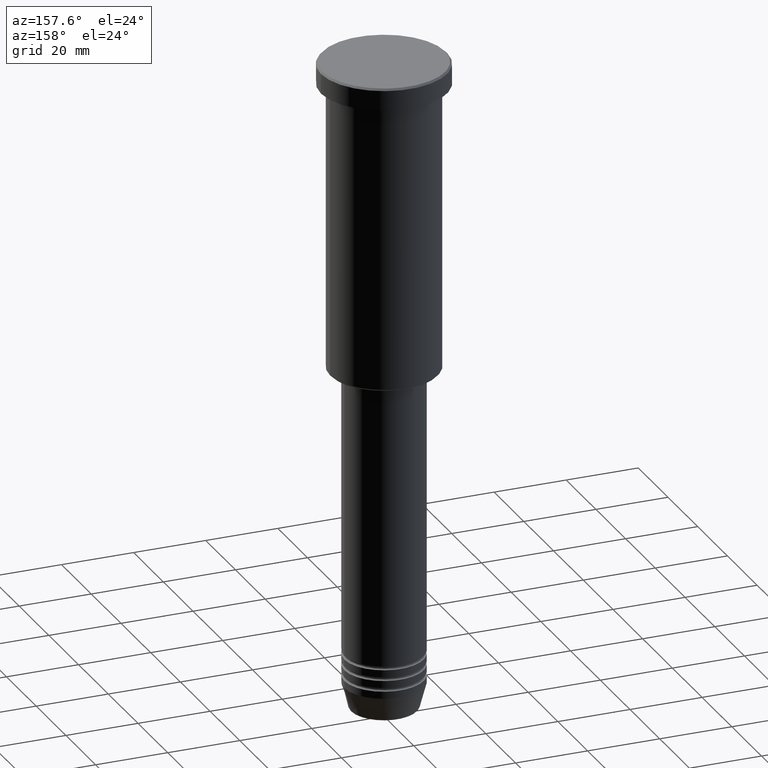
[diagram: clean part render]
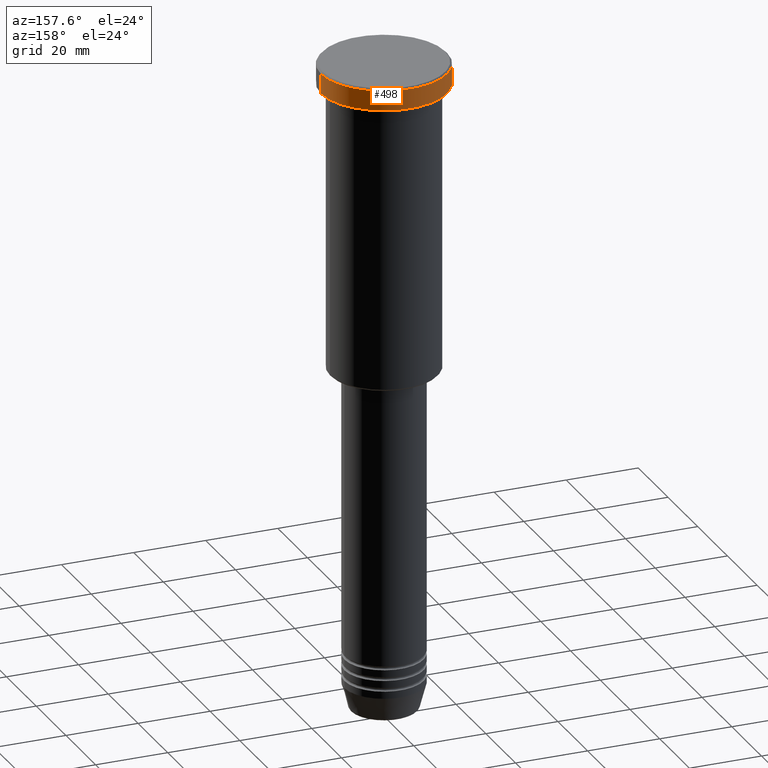
[diagram: same view with one face highlighted and labeled with its STEP entity id]
A machine part, auxiliary view. The second image highlights one B-rep face of the part: STEP entity #498.
In plain terms, the highlighted cylindrical surface (partial cylindrical patch) has radius 17.5 mm, axis along (-0, -0, 1).
Its self-contained STEP definition (entity closure, byte-faithful):
#21 = CARTESIAN_POINT ( 'NONE',  ( 17.50000000000000000, 0.000000000000000000, 0.000000000000000000 ) ) ;
#33 = LINE ( 'NONE', #294, #351 ) ;
#60 = ORIENTED_EDGE ( 'NONE', *, *, #662, .F. ) ;
#77 = CARTESIAN_POINT ( 'NONE',  ( -17.50000000000000000, 2.143131898507868248E-15, -5.999999999999995559 ) ) ;
#117 = ORIENTED_EDGE ( 'NONE', *, *, #884, .T. ) ;
#201 = ORIENTED_EDGE ( 'NONE', *, *, #1064, .T. ) ;
#218 = CIRCLE ( 'NONE', #738, 17.50000000000000000 ) ;
#250 = CARTESIAN_POINT ( 'NONE',  ( 17.50000000000000000, 0.000000000000000000, -0.5000000000000003331 ) ) ;
#255 = VECTOR ( 'NONE', #288, 1000.000000000000000 ) ;
#256 = DIRECTION ( 'NONE',  ( 1.000000000000000000, 0.000000000000000000, 0.000000000000000000 ) ) ;
#282 = EDGE_CURVE ( 'NONE', #1085, #1180, #1038, .T. ) ;
#288 = DIRECTION ( 'NONE',  ( -0.000000000000000000, -0.000000000000000000, 1.000000000000000000 ) ) ;
#294 = CARTESIAN_POINT ( 'NONE',  ( -17.50000000000000000, 2.143131898507868248E-15, 0.000000000000000000 ) ) ;
#336 = DIRECTION ( 'NONE',  ( -0.000000000000000000, -0.000000000000000000, 1.000000000000000000 ) ) ;
#351 = VECTOR ( 'NONE', #674, 1000.000000000000000 ) ;
#489 = CARTESIAN_POINT ( 'NONE',  ( 17.50000000000000000, 0.000000000000000000, -5.999999999999995559 ) ) ;
#496 = DIRECTION ( 'NONE',  ( 0.000000000000000000, 0.000000000000000000, -1.000000000000000000 ) ) ;
#498 = ADVANCED_FACE ( 'NONE', ( #821 ), #810, .T. ) ;
#509 = VERTEX_POINT ( 'NONE', #77 ) ;
#524 = DIRECTION ( 'NONE',  ( -0.000000000000000000, -0.000000000000000000, 1.000000000000000000 ) ) ;
#662 = EDGE_CURVE ( 'NONE', #1049, #1180, #843, .T. ) ;
#674 = DIRECTION ( 'NONE',  ( -0.000000000000000000, -0.000000000000000000, 1.000000000000000000 ) ) ;
#709 = DIRECTION ( 'NONE',  ( 1.000000000000000000, 0.000000000000000000, 0.000000000000000000 ) ) ;
#713 = DIRECTION ( 'NONE',  ( 1.000000000000000000, 0.000000000000000000, 0.000000000000000000 ) ) ;
#720 = AXIS2_PLACEMENT_3D ( 'NONE', #1071, #524, #256 ) ;
#738 = AXIS2_PLACEMENT_3D ( 'NONE', #747, #336, #713 ) ;
#742 = ORIENTED_EDGE ( 'NONE', *, *, #282, .T. ) ;
#747 = CARTESIAN_POINT ( 'NONE',  ( 0.000000000000000000, 0.000000000000000000, -5.999999999999995559 ) ) ;
#810 = CYLINDRICAL_SURFACE ( 'NONE', #720, 17.50000000000000000 ) ;
#821 = FACE_OUTER_BOUND ( 'NONE', #901, .T. ) ;
#843 = LINE ( 'NONE', #21, #255 ) ;
#865 = CARTESIAN_POINT ( 'NONE',  ( -17.50000000000000000, 2.143131898507868248E-15, -0.5000000000000003331 ) ) ;
#884 = EDGE_CURVE ( 'NONE', #1049, #509, #218, .T. ) ;
#901 = EDGE_LOOP ( 'NONE', ( #117, #201, #742, #60 ) ) ;
#1038 = CIRCLE ( 'NONE', #1070, 17.50000000000000000 ) ;
#1049 = VERTEX_POINT ( 'NONE', #489 ) ;
#1064 = EDGE_CURVE ( 'NONE', #509, #1085, #33, .T. ) ;
#1070 = AXIS2_PLACEMENT_3D ( 'NONE', #1152, #496, #709 ) ;
#1071 = CARTESIAN_POINT ( 'NONE',  ( 0.000000000000000000, 0.000000000000000000, 0.000000000000000000 ) ) ;
#1085 = VERTEX_POINT ( 'NONE', #865 ) ;
#1152 = CARTESIAN_POINT ( 'NONE',  ( 0.000000000000000000, 0.000000000000000000, -0.5000000000000003331 ) ) ;
#1180 = VERTEX_POINT ( 'NONE', #250 ) ;